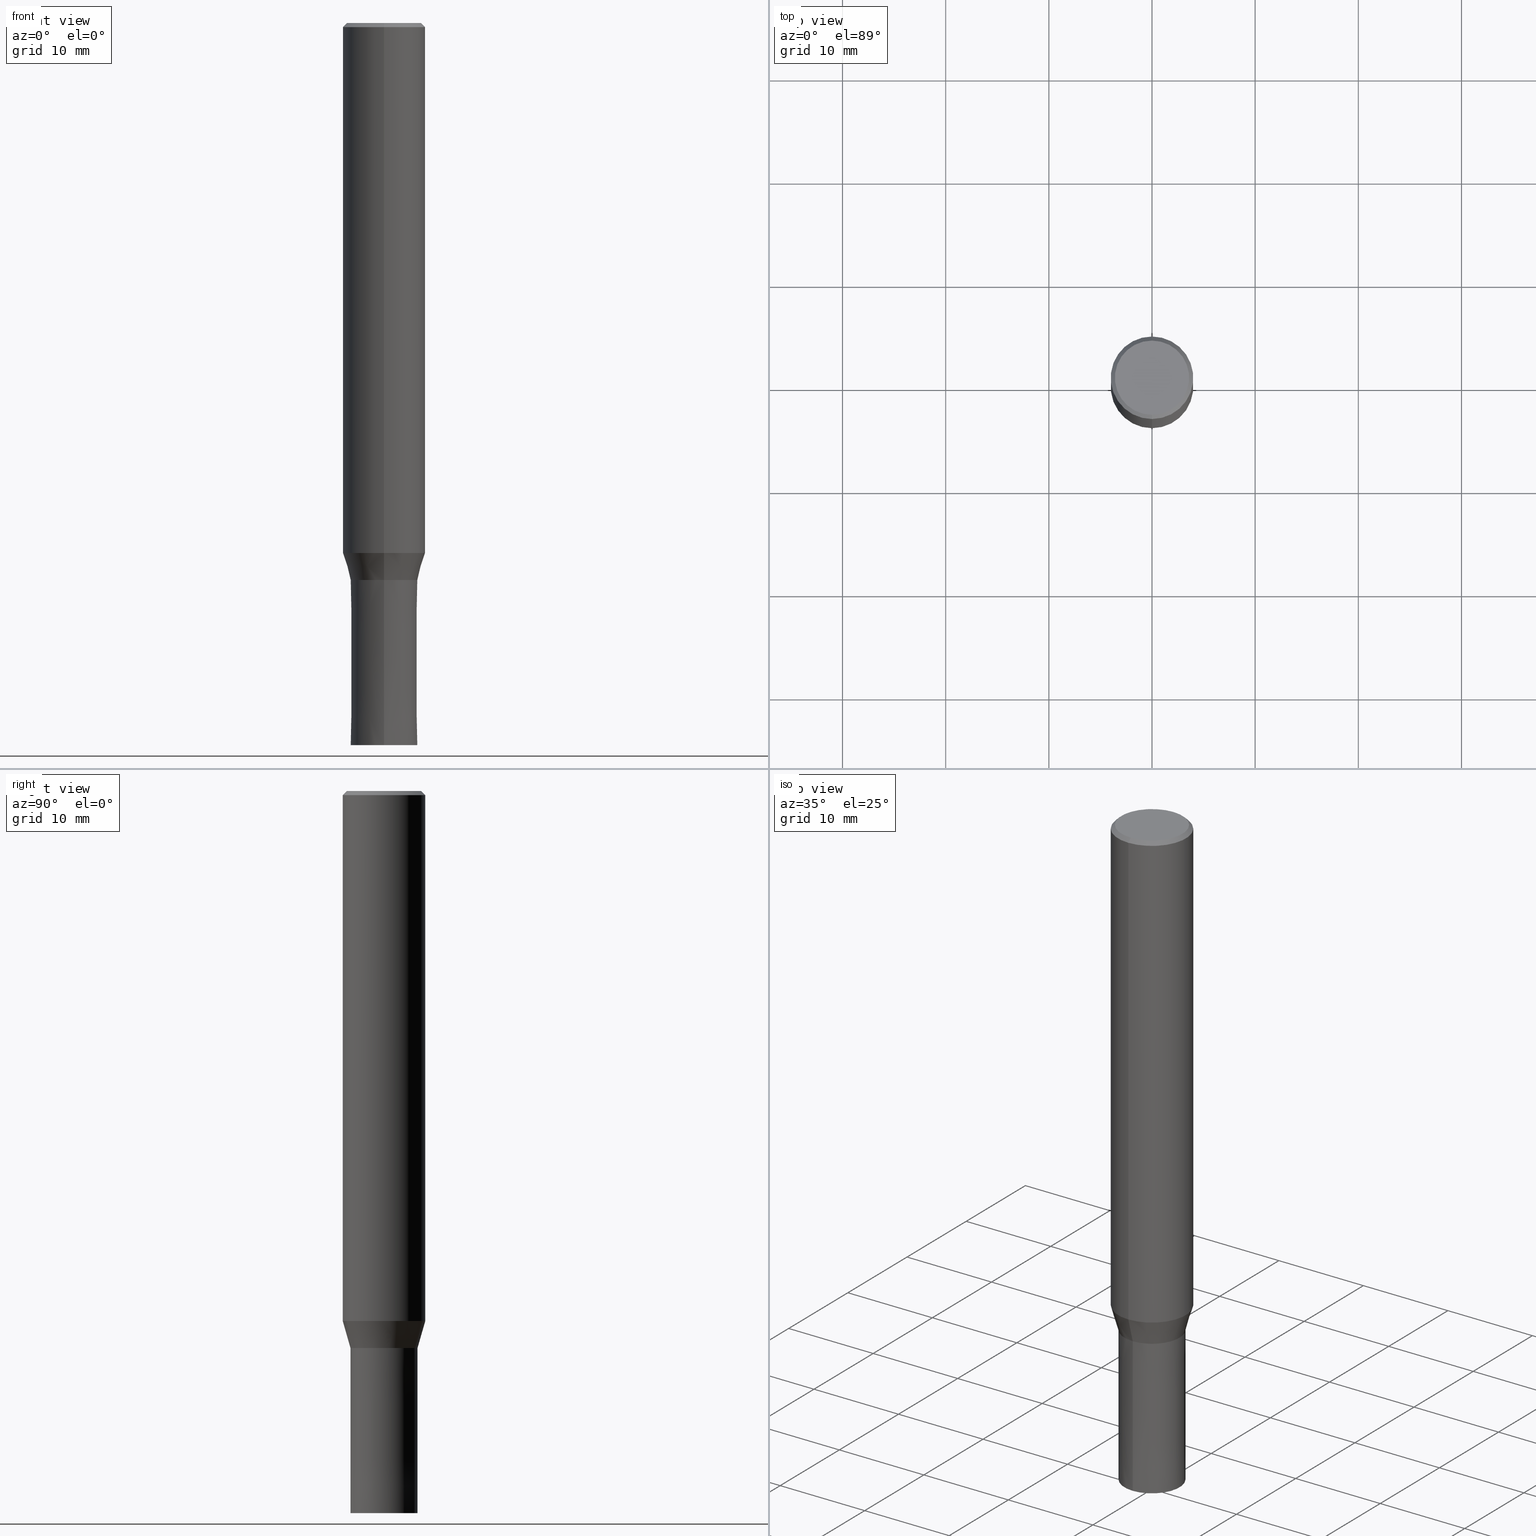
[diagram: canonical four-view strip — front | top / right | iso, engineering-drawing reading convention]
A machine part, canonical four-view strip (front | top / right | iso — engineering-drawing reading convention). The complete STEP part file that produces these views, byte-faithful:
ISO-10303-21;
HEADER;
FILE_DESCRIPTION(('no description'),'unknown implementation level');
FILE_NAME('CZS4065-1600-Huellk.stp','  ',('CIMSOURCE GmbH'),('CADClick - KiM GmbH - www.kimweb.de'),'unknown preprocess','ACIS','unknown authorization');
FILE_SCHEMA(('automotive_design'));
ENDSEC;
DATA;
#1=MECHANICAL_DESIGN_GEOMETRIC_PRESENTATION_REPRESENTATION(' ',(#14,#15,#16,#17,#18,#19,#20,#21,#22,#23,#24,#25,#26,#27,#28,#29,#30,#31,#32,#33,#34,#35,#36,#37,#38,#39,#40,#41,#42,#43,#44,#45,#46,#47,#48,#49,#50,#51,#52,#53,#54,#55,#56,#57,#58,#59,#60,#61,#62,#63,#64),#10);
#2=PRODUCT_DEFINITION_CONTEXT('',#65,'design');
#3=APPLICATION_PROTOCOL_DEFINITION('INTERNATIONAL STANDARD','automotive_design',1994,#65);
#4=PRODUCT_CATEGORY_RELATIONSHIP('NONE','NONE',#66,#67);
#5=SHAPE_DEFINITION_REPRESENTATION(#68,#69);
#6=PRODUCT_DEFINITION_CONTEXT('',#70,'design');
#7=APPLICATION_PROTOCOL_DEFINITION('INTERNATIONAL STANDARD','automotive_design',1994,#70);
#8=PRODUCT_CATEGORY_RELATIONSHIP('NONE','NONE',#71,#72);
#9=SHAPE_DEFINITION_REPRESENTATION(#73,#74);
#10= (GEOMETRIC_REPRESENTATION_CONTEXT(3)GLOBAL_UNCERTAINTY_ASSIGNED_CONTEXT((#77))GLOBAL_UNIT_ASSIGNED_CONTEXT((#79,#80,#81))REPRESENTATION_CONTEXT('NONE','WORKSPACE'));
#14=STYLED_ITEM('',(#83),#84);
#15=STYLED_ITEM('',(#85),#86);
#16=STYLED_ITEM('',(#87),#88);
#17=STYLED_ITEM('',(#89),#90);
#18=STYLED_ITEM('',(#91),#92);
#19=STYLED_ITEM('',(#93),#94);
#20=STYLED_ITEM('',(#95),#96);
#21=STYLED_ITEM('',(#97),#98);
#22=STYLED_ITEM('',(#99),#100);
#23=STYLED_ITEM('',(#101),#102);
#24=STYLED_ITEM('',(#103),#104);
#25=STYLED_ITEM('',(#105),#106);
#26=STYLED_ITEM('',(#107),#108);
#27=STYLED_ITEM('',(#109),#110);
#28=STYLED_ITEM('',(#111),#112);
#29=STYLED_ITEM('',(#113),#114);
#30=STYLED_ITEM('',(#115),#116);
#31=STYLED_ITEM('',(#117),#118);
#32=STYLED_ITEM('',(#119),#120);
#33=STYLED_ITEM('',(#121),#122);
#34=STYLED_ITEM('',(#123),#124);
#35=STYLED_ITEM('',(#125),#126);
#36=STYLED_ITEM('',(#127),#128);
#37=STYLED_ITEM('',(#129),#130);
#38=STYLED_ITEM('',(#131),#132);
#39=STYLED_ITEM('',(#133),#134);
#40=STYLED_ITEM('',(#135),#136);
#41=STYLED_ITEM('',(#137),#138);
#42=STYLED_ITEM('',(#139),#140);
#43=STYLED_ITEM('',(#141),#142);
#44=STYLED_ITEM('',(#143),#144);
#45=STYLED_ITEM('',(#145),#146);
#46=STYLED_ITEM('',(#147),#148);
#47=STYLED_ITEM('',(#149),#150);
#48=STYLED_ITEM('',(#151),#152);
#49=STYLED_ITEM('',(#153),#154);
#50=STYLED_ITEM('',(#155),#156);
#51=STYLED_ITEM('',(#157),#158);
#52=STYLED_ITEM('',(#159),#160);
#53=STYLED_ITEM('',(#161),#162);
#54=STYLED_ITEM('',(#163),#164);
#55=STYLED_ITEM('',(#165),#166);
#56=STYLED_ITEM('',(#167),#168);
#57=STYLED_ITEM('',(#169),#170);
#58=STYLED_ITEM('',(#171),#172);
#59=STYLED_ITEM('',(#173),#174);
#60=STYLED_ITEM('',(#175),#176);
#61=STYLED_ITEM('',(#177),#178);
#62=STYLED_ITEM('',(#179),#180);
#63=STYLED_ITEM('',(#181),#182);
#64=STYLED_ITEM('',(#183),#184);
#65=APPLICATION_CONTEXT(' ');
#66=PRODUCT_CATEGORY('part','NONE');
#67=PRODUCT_RELATED_PRODUCT_CATEGORY('detail',' ',(#185));
#68=PRODUCT_DEFINITION_SHAPE('NONE','NONE',#186);
#69=ADVANCED_BREP_SHAPE_REPRESENTATION('1',(#182,#187),#10);
#70=APPLICATION_CONTEXT(' ');
#71=PRODUCT_CATEGORY('part','NONE');
#72=PRODUCT_RELATED_PRODUCT_CATEGORY('detail',' ',(#188));
#73=PRODUCT_DEFINITION_SHAPE('NONE','NONE',#189);
#74=ADVANCED_BREP_SHAPE_REPRESENTATION('2',(#168,#190),#10);
#77=UNCERTAINTY_MEASURE_WITH_UNIT(LENGTH_MEASURE(1.0E-006),#79,'','');
#79= (CONVERSION_BASED_UNIT('MILLIMETRE',#193)LENGTH_UNIT()NAMED_UNIT(#196));
#80= (NAMED_UNIT(#198)PLANE_ANGLE_UNIT()SI_UNIT($,.RADIAN.));
#81= (NAMED_UNIT(#198)SOLID_ANGLE_UNIT()SI_UNIT($,.STERADIAN.));
#83=PRESENTATION_STYLE_ASSIGNMENT((#204));
#84=EDGE_CURVE('',#114,#136,#205,.T.);
#85=PRESENTATION_STYLE_ASSIGNMENT((#206));
#86=EDGE_CURVE('',#128,#122,#207,.T.);
#87=PRESENTATION_STYLE_ASSIGNMENT((#208));
#88=VERTEX_POINT('',#209);
#89=PRESENTATION_STYLE_ASSIGNMENT((#210));
#90=VERTEX_POINT('',#211);
#91=PRESENTATION_STYLE_ASSIGNMENT((#212));
#92=EDGE_CURVE('',#90,#134,#213,.T.);
#93=PRESENTATION_STYLE_ASSIGNMENT((#214));
#94=VERTEX_POINT('',#215);
#95=PRESENTATION_STYLE_ASSIGNMENT((#216));
#96=EDGE_CURVE('',#94,#112,#217,.T.);
#97=PRESENTATION_STYLE_ASSIGNMENT((#218));
#98=ADVANCED_FACE('',(#219),#220,.T.);
#99=PRESENTATION_STYLE_ASSIGNMENT((#221));
#100=ADVANCED_FACE('',(#222),#223,.T.);
#101=PRESENTATION_STYLE_ASSIGNMENT((#224));
#102=ADVANCED_FACE('',(#225,#226),#227,.T.);
#103=PRESENTATION_STYLE_ASSIGNMENT((#228));
#104=EDGE_CURVE('',#128,#88,#229,.T.);
#105=PRESENTATION_STYLE_ASSIGNMENT((#230));
#106=VERTEX_POINT('',#231);
#107=PRESENTATION_STYLE_ASSIGNMENT((#232));
#108=EDGE_CURVE('',#112,#174,#233,.T.);
#109=PRESENTATION_STYLE_ASSIGNMENT((#234));
#110=EDGE_CURVE('',#136,#160,#235,.T.);
#111=PRESENTATION_STYLE_ASSIGNMENT((#236));
#112=VERTEX_POINT('',#237);
#113=PRESENTATION_STYLE_ASSIGNMENT((#238));
#114=VERTEX_POINT('',#239);
#115=PRESENTATION_STYLE_ASSIGNMENT((#240));
#116=EDGE_CURVE('',#90,#94,#241,.T.);
#117=PRESENTATION_STYLE_ASSIGNMENT((#242));
#118=ADVANCED_FACE('',(#243),#244,.T.);
#119=PRESENTATION_STYLE_ASSIGNMENT((#245));
#120=EDGE_CURVE('',#114,#138,#246,.T.);
#121=PRESENTATION_STYLE_ASSIGNMENT((#247));
#122=VERTEX_POINT('',#248);
#123=PRESENTATION_STYLE_ASSIGNMENT((#249));
#124=ADVANCED_FACE('',(#250),#251,.T.);
#125=PRESENTATION_STYLE_ASSIGNMENT((#252));
#126=ADVANCED_FACE('',(#253),#254,.T.);
#127=PRESENTATION_STYLE_ASSIGNMENT((#255));
#128=VERTEX_POINT('',#256);
#129=PRESENTATION_STYLE_ASSIGNMENT((#257));
#130=VERTEX_POINT('',#258);
#131=PRESENTATION_STYLE_ASSIGNMENT((#259));
#132=EDGE_CURVE('',#106,#94,#260,.T.);
#133=PRESENTATION_STYLE_ASSIGNMENT((#261));
#134=VERTEX_POINT('',#262);
#135=PRESENTATION_STYLE_ASSIGNMENT((#263));
#136=VERTEX_POINT('',#264);
#137=PRESENTATION_STYLE_ASSIGNMENT((#265));
#138=VERTEX_POINT('',#266);
#139=PRESENTATION_STYLE_ASSIGNMENT((#267));
#140=ADVANCED_FACE('',(#268),#269,.T.);
#141=PRESENTATION_STYLE_ASSIGNMENT((#270));
#142=ADVANCED_FACE('',(#271),#272,.T.);
#143=PRESENTATION_STYLE_ASSIGNMENT((#273));
#144=EDGE_CURVE('',#160,#138,#274,.T.);
#145=PRESENTATION_STYLE_ASSIGNMENT((#275));
#146=EDGE_CURVE('',#122,#128,#276,.T.);
#147=PRESENTATION_STYLE_ASSIGNMENT((#277));
#148=ADVANCED_FACE('',(#278),#279,.T.);
#149=PRESENTATION_STYLE_ASSIGNMENT((#280));
#150=EDGE_CURVE('',#160,#136,#281,.T.);
#151=PRESENTATION_STYLE_ASSIGNMENT((#282));
#152=ADVANCED_FACE('',(#283),#284,.T.);
#153=PRESENTATION_STYLE_ASSIGNMENT((#285));
#154=EDGE_CURVE('',#174,#90,#286,.T.);
#155=PRESENTATION_STYLE_ASSIGNMENT((#287));
#156=EDGE_CURVE('',#130,#88,#288,.T.);
#157=PRESENTATION_STYLE_ASSIGNMENT((#289));
#158=ADVANCED_FACE('',(#290),#291,.T.);
#159=PRESENTATION_STYLE_ASSIGNMENT((#292));
#160=VERTEX_POINT('',#293);
#161=PRESENTATION_STYLE_ASSIGNMENT((#294));
#162=ADVANCED_FACE('',(#295),#296,.T.);
#163=PRESENTATION_STYLE_ASSIGNMENT((#297));
#164=EDGE_CURVE('',#174,#112,#298,.T.);
#165=PRESENTATION_STYLE_ASSIGNMENT((#299));
#166=EDGE_CURVE('',#130,#122,#300,.T.);
#167=PRESENTATION_STYLE_ASSIGNMENT((#301));
#168=MANIFOLD_SOLID_BREP('2',#302);
#169=PRESENTATION_STYLE_ASSIGNMENT((#303));
#170=EDGE_CURVE('',#138,#114,#304,.T.);
#171=PRESENTATION_STYLE_ASSIGNMENT((#305));
#172=EDGE_CURVE('',#88,#130,#306,.T.);
#173=PRESENTATION_STYLE_ASSIGNMENT((#307));
#174=VERTEX_POINT('',#308);
#175=PRESENTATION_STYLE_ASSIGNMENT((#309));
#176=EDGE_CURVE('',#94,#90,#310,.T.);
#177=PRESENTATION_STYLE_ASSIGNMENT((#311));
#178=EDGE_CURVE('',#134,#106,#312,.T.);
#179=PRESENTATION_STYLE_ASSIGNMENT((#313));
#180=ADVANCED_FACE('',(#314),#315,.T.);
#181=PRESENTATION_STYLE_ASSIGNMENT((#316));
#182=MANIFOLD_SOLID_BREP('1',#317);
#183=PRESENTATION_STYLE_ASSIGNMENT((#318));
#184=EDGE_CURVE('',#106,#134,#319,.T.);
#185=PRODUCT('1','1','PART-1-DESC',(#320));
#186=PRODUCT_DEFINITION('NONE','NONE',#321,#2);
#187=AXIS2_PLACEMENT_3D('',#322,#323,#324);
#188=PRODUCT('2','2','PART-2-DESC',(#325));
#189=PRODUCT_DEFINITION('NONE','NONE',#326,#6);
#190=AXIS2_PLACEMENT_3D('',#327,#328,#329);
#193=LENGTH_MEASURE_WITH_UNIT(LENGTH_MEASURE(1.0),#330);
#196=DIMENSIONAL_EXPONENTS(1.0,0.0,0.0,0.0,0.0,0.0,0.0);
#198=DIMENSIONAL_EXPONENTS(0.0,0.0,0.0,0.0,0.0,0.0,0.0);
#204=CURVE_STYLE('',#331,POSITIVE_LENGTH_MEASURE(1.0E-006),#332);
#205=LINE('',#333,#334);
#206=CURVE_STYLE('',#335,POSITIVE_LENGTH_MEASURE(1.0E-006),#336);
#207=CIRCLE('',#337,3.99995);
#208=POINT_STYLE(' ',#338,POSITIVE_LENGTH_MEASURE(1.0E-006),#339);
#209=CARTESIAN_POINT('',(0.0,3.24995,-54.0));
#210=POINT_STYLE(' ',#340,POSITIVE_LENGTH_MEASURE(1.0E-006),#341);
#211=CARTESIAN_POINT('',(0.0,4.0,-0.399999999999999));
#212=CURVE_STYLE('',#342,POSITIVE_LENGTH_MEASURE(1.0E-006),#343);
#213=LINE('',#344,#345);
#214=POINT_STYLE(' ',#346,POSITIVE_LENGTH_MEASURE(1.0E-006),#347);
#215=CARTESIAN_POINT('',(4.89842541528951E-016,-4.0,-0.399999999999999));
#216=CURVE_STYLE('',#348,POSITIVE_LENGTH_MEASURE(1.0E-006),#349);
#217=LINE('',#350,#351);
#218=SURFACE_STYLE_USAGE(.BOTH.,#352);
#219=FACE_OUTER_BOUND('',#353,.T.);
#220=CYLINDRICAL_SURFACE('',#354,4.0);
#221=SURFACE_STYLE_USAGE(.BOTH.,#355);
#222=FACE_OUTER_BOUND('',#356,.T.);
#223=PLANE('',#357);
#224=SURFACE_STYLE_USAGE(.BOTH.,#358);
#225=FACE_OUTER_BOUND('',#359,.T.);
#226=FACE_BOUND('',#360,.T.);
#227=PLANE('',#361);
#228=CURVE_STYLE('',#362,POSITIVE_LENGTH_MEASURE(1.0E-006),#363);
#229=LINE('',#364,#365);
#230=POINT_STYLE(' ',#366,POSITIVE_LENGTH_MEASURE(1.0E-006),#367);
#231=CARTESIAN_POINT('',(4.89842541528951E-016,-4.0,-51.384));
#232=CURVE_STYLE('',#368,POSITIVE_LENGTH_MEASURE(1.0E-006),#369);
#233=CIRCLE('',#370,3.6);
#234=CURVE_STYLE('',#371,POSITIVE_LENGTH_MEASURE(1.0E-006),#372);
#235=CIRCLE('',#373,3.25);
#236=POINT_STYLE(' ',#374,POSITIVE_LENGTH_MEASURE(1.0E-006),#375);
#237=CARTESIAN_POINT('',(4.40858287376056E-016,-3.6,0.0));
#238=POINT_STYLE(' ',#376,POSITIVE_LENGTH_MEASURE(1.0E-006),#377);
#239=CARTESIAN_POINT('',(0.0,3.2499,-54.0));
#240=CURVE_STYLE('',#378,POSITIVE_LENGTH_MEASURE(1.0E-006),#379);
#241=CIRCLE('',#380,4.0);
#242=SURFACE_STYLE_USAGE(.BOTH.,#381);
#243=FACE_OUTER_BOUND('',#382,.T.);
#244=PLANE('',#383);
#245=CURVE_STYLE('',#384,POSITIVE_LENGTH_MEASURE(1.0E-006),#385);
#246=CIRCLE('',#386,3.2499);
#247=POINT_STYLE(' ',#387,POSITIVE_LENGTH_MEASURE(1.0E-006),#388);
#248=CARTESIAN_POINT('',(4.89836418497182E-016,-3.99995,-51.384));
#249=SURFACE_STYLE_USAGE(.BOTH.,#389);
#250=FACE_OUTER_BOUND('',#390,.T.);
#251=CONICAL_SURFACE('',#391,3.8,0.78539816339745);
#252=SURFACE_STYLE_USAGE(.BOTH.,#392);
#253=FACE_OUTER_BOUND('',#393,.T.);
#254=CYLINDRICAL_SURFACE('',#394,4.0);
#255=POINT_STYLE(' ',#395,POSITIVE_LENGTH_MEASURE(1.0E-006),#396);
#256=CARTESIAN_POINT('',(0.0,3.99995,-51.384));
#257=POINT_STYLE(' ',#397,POSITIVE_LENGTH_MEASURE(1.0E-006),#398);
#258=CARTESIAN_POINT('',(3.97990941960504E-016,-3.24995,-54.0));
#259=CURVE_STYLE('',#399,POSITIVE_LENGTH_MEASURE(1.0E-006),#400);
#260=LINE('',#401,#402);
#261=POINT_STYLE(' ',#403,POSITIVE_LENGTH_MEASURE(1.0E-006),#404);
#262=CARTESIAN_POINT('',(0.0,4.0,-51.384));
#263=POINT_STYLE(' ',#405,POSITIVE_LENGTH_MEASURE(1.0E-006),#406);
#264=CARTESIAN_POINT('',(0.0,3.25,-70.0));
#265=POINT_STYLE(' ',#407,POSITIVE_LENGTH_MEASURE(1.0E-006),#408);
#266=CARTESIAN_POINT('',(3.97984818928734E-016,-3.2499,-54.0));
#267=SURFACE_STYLE_USAGE(.BOTH.,#409);
#268=FACE_OUTER_BOUND('',#410,.T.);
#269=PLANE('',#411);
#270=SURFACE_STYLE_USAGE(.BOTH.,#412);
#271=FACE_OUTER_BOUND('',#413,.T.);
#272=CONICAL_SURFACE('',#414,3.24995,6.24999999993181E-006);
#273=CURVE_STYLE('',#415,POSITIVE_LENGTH_MEASURE(1.0E-006),#416);
#274=LINE('',#417,#418);
#275=CURVE_STYLE('',#419,POSITIVE_LENGTH_MEASURE(1.0E-006),#420);
#276=CIRCLE('',#421,3.99995);
#277=SURFACE_STYLE_USAGE(.BOTH.,#422);
#278=FACE_OUTER_BOUND('',#423,.T.);
#279=CONICAL_SURFACE('',#424,3.62495,0.279208199033747);
#280=CURVE_STYLE('',#425,POSITIVE_LENGTH_MEASURE(1.0E-006),#426);
#281=CIRCLE('',#427,3.25);
#282=SURFACE_STYLE_USAGE(.BOTH.,#428);
#283=FACE_OUTER_BOUND('',#429,.T.);
#284=PLANE('',#430);
#285=CURVE_STYLE('',#431,POSITIVE_LENGTH_MEASURE(1.0E-006),#432);
#286=LINE('',#433,#434);
#287=CURVE_STYLE('',#435,POSITIVE_LENGTH_MEASURE(1.0E-006),#436);
#288=CIRCLE('',#437,3.24995);
#289=SURFACE_STYLE_USAGE(.BOTH.,#438);
#290=FACE_OUTER_BOUND('',#439,.T.);
#291=CONICAL_SURFACE('',#440,3.24995,6.24999999993181E-006);
#292=POINT_STYLE(' ',#441,POSITIVE_LENGTH_MEASURE(1.0E-006),#442);
#293=CARTESIAN_POINT('',(3.97997064992273E-016,-3.25,-70.0));
#294=SURFACE_STYLE_USAGE(.BOTH.,#443);
#295=FACE_OUTER_BOUND('',#444,.T.);
#296=CONICAL_SURFACE('',#445,3.8,0.78539816339745);
#297=CURVE_STYLE('',#446,POSITIVE_LENGTH_MEASURE(1.0E-006),#447);
#298=CIRCLE('',#448,3.6);
#299=CURVE_STYLE('',#449,POSITIVE_LENGTH_MEASURE(1.0E-006),#450);
#300=LINE('',#451,#452);
#301=SURFACE_STYLE_USAGE(.BOTH.,#453);
#302=CLOSED_SHELL('',(#158,#118,#142,#100));
#303=CURVE_STYLE('',#454,POSITIVE_LENGTH_MEASURE(1.0E-006),#455);
#304=CIRCLE('',#456,3.2499);
#305=CURVE_STYLE('',#457,POSITIVE_LENGTH_MEASURE(1.0E-006),#458);
#306=CIRCLE('',#459,3.24995);
#307=POINT_STYLE(' ',#460,POSITIVE_LENGTH_MEASURE(1.0E-006),#461);
#308=CARTESIAN_POINT('',(0.0,3.6,0.0));
#309=CURVE_STYLE('',#462,POSITIVE_LENGTH_MEASURE(1.0E-006),#463);
#310=CIRCLE('',#464,4.0);
#311=CURVE_STYLE('',#465,POSITIVE_LENGTH_MEASURE(1.0E-006),#466);
#312=CIRCLE('',#467,4.0);
#313=SURFACE_STYLE_USAGE(.BOTH.,#468);
#314=FACE_OUTER_BOUND('',#469,.T.);
#315=CONICAL_SURFACE('',#470,3.62495,0.279208199033747);
#316=SURFACE_STYLE_USAGE(.BOTH.,#471);
#317=CLOSED_SHELL('',(#180,#126,#162,#102,#140,#124,#98,#148,#152));
#318=CURVE_STYLE('',#472,POSITIVE_LENGTH_MEASURE(1.0E-006),#473);
#319=CIRCLE('',#474,4.0);
#320=PRODUCT_CONTEXT('',#65,'mechanical');
#321=PRODUCT_DEFINITION_FORMATION_WITH_SPECIFIED_SOURCE(' ','NONE',#185,.NOT_KNOWN.);
#322=CARTESIAN_POINT('',(0.0,0.0,0.0));
#323=DIRECTION('',(0.0,0.0,1.0));
#324=DIRECTION('',(1.0,0.0,0.0));
#325=PRODUCT_CONTEXT('',#70,'mechanical');
#326=PRODUCT_DEFINITION_FORMATION_WITH_SPECIFIED_SOURCE(' ','NONE',#188,.NOT_KNOWN.);
#327=CARTESIAN_POINT('',(0.0,0.0,0.0));
#328=DIRECTION('',(0.0,0.0,1.0));
#329=DIRECTION('',(1.0,0.0,0.0));
#330= (NAMED_UNIT(#196)LENGTH_UNIT()SI_UNIT(.MILLI.,.METRE.));
#331=DRAUGHTING_PRE_DEFINED_CURVE_FONT('continuous');
#332=COLOUR_RGB('',0.800000011920929,0.800000011920929,0.800000011920929);
#333=CARTESIAN_POINT('',(-3.97990941960504E-016,3.24995,-62.0));
#334=VECTOR('',#476,1.0);
#335=DRAUGHTING_PRE_DEFINED_CURVE_FONT('continuous');
#336=COLOUR_RGB('',0.498039215803146,0.498039215803146,0.498039215803146);
#337=AXIS2_PLACEMENT_3D('',#477,#478,#479);
#338=PRE_DEFINED_MARKER('');
#339=COLOUR_RGB('',0.498039215803146,0.498039215803146,0.498039215803146);
#340=PRE_DEFINED_MARKER('');
#341=COLOUR_RGB('',0.498039215803146,0.498039215803146,0.498039215803146);
#342=DRAUGHTING_PRE_DEFINED_CURVE_FONT('continuous');
#343=COLOUR_RGB('',0.498039215803146,0.498039215803146,0.498039215803146);
#344=CARTESIAN_POINT('',(-4.89842541528951E-016,4.0,-25.892));
#345=VECTOR('',#480,1.0);
#346=PRE_DEFINED_MARKER('');
#347=COLOUR_RGB('',0.498039215803146,0.498039215803146,0.498039215803146);
#348=DRAUGHTING_PRE_DEFINED_CURVE_FONT('continuous');
#349=COLOUR_RGB('',0.498039215803146,0.498039215803146,0.498039215803146);
#350=CARTESIAN_POINT('',(4.65350414452503E-016,-3.8,-0.199999999999996));
#351=VECTOR('',#481,1.0);
#352=SURFACE_SIDE_STYLE('',(#482));
#353=EDGE_LOOP('',(#483,#484,#485,#486));
#354=AXIS2_PLACEMENT_3D('',#487,#488,#489);
#355=SURFACE_SIDE_STYLE('',(#490));
#356=EDGE_LOOP('',(#491,#492));
#357=AXIS2_PLACEMENT_3D('',#493,#494,#495);
#358=SURFACE_SIDE_STYLE('',(#496));
#359=EDGE_LOOP('',(#497,#498));
#360=EDGE_LOOP('',(#499,#500));
#361=AXIS2_PLACEMENT_3D('',#501,#502,#503);
#362=DRAUGHTING_PRE_DEFINED_CURVE_FONT('continuous');
#363=COLOUR_RGB('',0.498039215803146,0.498039215803146,0.498039215803146);
#364=CARTESIAN_POINT('',(-4.43913680228843E-016,3.62495,-52.692));
#365=VECTOR('',#504,1.0);
#366=PRE_DEFINED_MARKER('');
#367=COLOUR_RGB('',0.498039215803146,0.498039215803146,0.498039215803146);
#368=DRAUGHTING_PRE_DEFINED_CURVE_FONT('continuous');
#369=COLOUR_RGB('',0.498039215803146,0.498039215803146,0.498039215803146);
#370=AXIS2_PLACEMENT_3D('',#505,#506,#507);
#371=DRAUGHTING_PRE_DEFINED_CURVE_FONT('continuous');
#372=COLOUR_RGB('',0.800000011920929,0.800000011920929,0.800000011920929);
#373=AXIS2_PLACEMENT_3D('',#508,#509,#510);
#374=PRE_DEFINED_MARKER('');
#375=COLOUR_RGB('',0.498039215803146,0.498039215803146,0.498039215803146);
#376=PRE_DEFINED_MARKER('');
#377=COLOUR_RGB('',0.800000011920929,0.800000011920929,0.800000011920929);
#378=DRAUGHTING_PRE_DEFINED_CURVE_FONT('continuous');
#379=COLOUR_RGB('',0.498039215803146,0.498039215803146,0.498039215803146);
#380=AXIS2_PLACEMENT_3D('',#511,#512,#513);
#381=SURFACE_SIDE_STYLE('',(#514));
#382=EDGE_LOOP('',(#515,#516));
#383=AXIS2_PLACEMENT_3D('',#517,#518,#519);
#384=DRAUGHTING_PRE_DEFINED_CURVE_FONT('continuous');
#385=COLOUR_RGB('',0.800000011920929,0.800000011920929,0.800000011920929);
#386=AXIS2_PLACEMENT_3D('',#520,#521,#522);
#387=PRE_DEFINED_MARKER('');
#388=COLOUR_RGB('',0.498039215803146,0.498039215803146,0.498039215803146);
#389=SURFACE_SIDE_STYLE('',(#523));
#390=EDGE_LOOP('',(#524,#525,#526,#527));
#391=AXIS2_PLACEMENT_3D('',#528,#529,#530);
#392=SURFACE_SIDE_STYLE('',(#531));
#393=EDGE_LOOP('',(#532,#533,#534,#535));
#394=AXIS2_PLACEMENT_3D('',#536,#537,#538);
#395=PRE_DEFINED_MARKER('');
#396=COLOUR_RGB('',0.498039215803146,0.498039215803146,0.498039215803146);
#397=PRE_DEFINED_MARKER('');
#398=COLOUR_RGB('',0.498039215803146,0.498039215803146,0.498039215803146);
#399=DRAUGHTING_PRE_DEFINED_CURVE_FONT('continuous');
#400=COLOUR_RGB('',0.498039215803146,0.498039215803146,0.498039215803146);
#401=CARTESIAN_POINT('',(4.89842541528951E-016,-4.0,-25.892));
#402=VECTOR('',#539,1.0);
#403=PRE_DEFINED_MARKER('');
#404=COLOUR_RGB('',0.498039215803146,0.498039215803146,0.498039215803146);
#405=PRE_DEFINED_MARKER('');
#406=COLOUR_RGB('',0.800000011920929,0.800000011920929,0.800000011920929);
#407=PRE_DEFINED_MARKER('');
#408=COLOUR_RGB('',0.800000011920929,0.800000011920929,0.800000011920929);
#409=SURFACE_SIDE_STYLE('',(#540));
#410=EDGE_LOOP('',(#541,#542));
#411=AXIS2_PLACEMENT_3D('',#543,#544,#545);
#412=SURFACE_SIDE_STYLE('',(#546));
#413=EDGE_LOOP('',(#547,#548,#549,#550));
#414=AXIS2_PLACEMENT_3D('',#551,#552,#553);
#415=DRAUGHTING_PRE_DEFINED_CURVE_FONT('continuous');
#416=COLOUR_RGB('',0.800000011920929,0.800000011920929,0.800000011920929);
#417=CARTESIAN_POINT('',(3.97990941960504E-016,-3.24995,-62.0));
#418=VECTOR('',#554,1.0);
#419=DRAUGHTING_PRE_DEFINED_CURVE_FONT('continuous');
#420=COLOUR_RGB('',0.498039215803146,0.498039215803146,0.498039215803146);
#421=AXIS2_PLACEMENT_3D('',#555,#556,#557);
#422=SURFACE_SIDE_STYLE('',(#558));
#423=EDGE_LOOP('',(#559,#560,#561,#562));
#424=AXIS2_PLACEMENT_3D('',#563,#564,#565);
#425=DRAUGHTING_PRE_DEFINED_CURVE_FONT('continuous');
#426=COLOUR_RGB('',0.800000011920929,0.800000011920929,0.800000011920929);
#427=AXIS2_PLACEMENT_3D('',#566,#567,#568);
#428=SURFACE_SIDE_STYLE('',(#569));
#429=EDGE_LOOP('',(#570,#571));
#430=AXIS2_PLACEMENT_3D('',#572,#573,#574);
#431=DRAUGHTING_PRE_DEFINED_CURVE_FONT('continuous');
#432=COLOUR_RGB('',0.498039215803146,0.498039215803146,0.498039215803146);
#433=CARTESIAN_POINT('',(-4.65350414452503E-016,3.8,-0.199999999999996));
#434=VECTOR('',#575,1.0);
#435=DRAUGHTING_PRE_DEFINED_CURVE_FONT('continuous');
#436=COLOUR_RGB('',0.498039215803146,0.498039215803146,0.498039215803146);
#437=AXIS2_PLACEMENT_3D('',#576,#577,#578);
#438=SURFACE_SIDE_STYLE('',(#579));
#439=EDGE_LOOP('',(#580,#581,#582,#583));
#440=AXIS2_PLACEMENT_3D('',#584,#585,#586);
#441=PRE_DEFINED_MARKER('');
#442=COLOUR_RGB('',0.800000011920929,0.800000011920929,0.800000011920929);
#443=SURFACE_SIDE_STYLE('',(#587));
#444=EDGE_LOOP('',(#588,#589,#590,#591));
#445=AXIS2_PLACEMENT_3D('',#592,#593,#594);
#446=DRAUGHTING_PRE_DEFINED_CURVE_FONT('continuous');
#447=COLOUR_RGB('',0.498039215803146,0.498039215803146,0.498039215803146);
#448=AXIS2_PLACEMENT_3D('',#595,#596,#597);
#449=DRAUGHTING_PRE_DEFINED_CURVE_FONT('continuous');
#450=COLOUR_RGB('',0.498039215803146,0.498039215803146,0.498039215803146);
#451=CARTESIAN_POINT('',(4.43913680228843E-016,-3.62495,-52.692));
#452=VECTOR('',#598,1.0);
#453=SURFACE_SIDE_STYLE('',(#599));
#454=DRAUGHTING_PRE_DEFINED_CURVE_FONT('continuous');
#455=COLOUR_RGB('',0.800000011920929,0.800000011920929,0.800000011920929);
#456=AXIS2_PLACEMENT_3D('',#600,#601,#602);
#457=DRAUGHTING_PRE_DEFINED_CURVE_FONT('continuous');
#458=COLOUR_RGB('',0.498039215803146,0.498039215803146,0.498039215803146);
#459=AXIS2_PLACEMENT_3D('',#603,#604,#605);
#460=PRE_DEFINED_MARKER('');
#461=COLOUR_RGB('',0.498039215803146,0.498039215803146,0.498039215803146);
#462=DRAUGHTING_PRE_DEFINED_CURVE_FONT('continuous');
#463=COLOUR_RGB('',0.498039215803146,0.498039215803146,0.498039215803146);
#464=AXIS2_PLACEMENT_3D('',#606,#607,#608);
#465=DRAUGHTING_PRE_DEFINED_CURVE_FONT('continuous');
#466=COLOUR_RGB('',0.498039215803146,0.498039215803146,0.498039215803146);
#467=AXIS2_PLACEMENT_3D('',#609,#610,#611);
#468=SURFACE_SIDE_STYLE('',(#612));
#469=EDGE_LOOP('',(#613,#614,#615,#616));
#470=AXIS2_PLACEMENT_3D('',#617,#618,#619);
#471=SURFACE_SIDE_STYLE('',(#620));
#472=DRAUGHTING_PRE_DEFINED_CURVE_FONT('continuous');
#473=COLOUR_RGB('',0.498039215803146,0.498039215803146,0.498039215803146);
#474=AXIS2_PLACEMENT_3D('',#621,#622,#623);
#476=DIRECTION('',(-7.65378971125652E-022,6.24999999989112E-006,-0.999999999980469));
#477=CARTESIAN_POINT('',(0.0,0.0,-51.384));
#478=DIRECTION('',(0.0,0.0,-1.0));
#479=DIRECTION('',(0.0,1.0,0.0));
#480=DIRECTION('',(0.0,0.0,-1.0));
#481=DIRECTION('',(-8.65927457071937E-017,0.707106781186549,0.707106781186546));
#482=SURFACE_STYLE_FILL_AREA(#624);
#483=ORIENTED_EDGE('',*,*,#92,.T.);
#484=ORIENTED_EDGE('',*,*,#184,.F.);
#485=ORIENTED_EDGE('',*,*,#132,.T.);
#486=ORIENTED_EDGE('',*,*,#176,.T.);
#487=CARTESIAN_POINT('',(0.0,0.0,-25.892));
#488=DIRECTION('',(-0.0,-0.0,1.0));
#489=DIRECTION('',(0.0,1.0,0.0));
#490=SURFACE_STYLE_FILL_AREA(#625);
#491=ORIENTED_EDGE('',*,*,#110,.T.);
#492=ORIENTED_EDGE('',*,*,#150,.T.);
#493=CARTESIAN_POINT('',(0.0,1.6225,-70.0));
#494=DIRECTION('',(0.0,0.0,-1.0));
#495=DIRECTION('',(0.0,1.0,0.0));
#496=SURFACE_STYLE_FILL_AREA(#626);
#497=ORIENTED_EDGE('',*,*,#178,.T.);
#498=ORIENTED_EDGE('',*,*,#184,.T.);
#499=ORIENTED_EDGE('',*,*,#86,.F.);
#500=ORIENTED_EDGE('',*,*,#146,.F.);
#501=CARTESIAN_POINT('',(0.0,2.0,-51.384));
#502=DIRECTION('',(0.0,0.0,-1.0));
#503=DIRECTION('',(0.0,1.0,0.0));
#504=DIRECTION('',(3.37494895041124E-017,-0.275594597388538,-0.961273955691222));
#505=CARTESIAN_POINT('',(0.0,0.0,0.0));
#506=DIRECTION('',(0.0,0.0,-1.0));
#507=DIRECTION('',(0.0,1.0,0.0));
#508=CARTESIAN_POINT('',(0.0,0.0,-70.0));
#509=DIRECTION('',(0.0,0.0,-1.0));
#510=DIRECTION('',(0.0,1.0,0.0));
#511=CARTESIAN_POINT('',(0.0,0.0,-0.399999999999999));
#512=DIRECTION('',(0.0,0.0,-1.0));
#513=DIRECTION('',(0.0,1.0,0.0));
#514=SURFACE_STYLE_FILL_AREA(#627);
#515=ORIENTED_EDGE('',*,*,#120,.F.);
#516=ORIENTED_EDGE('',*,*,#170,.F.);
#517=CARTESIAN_POINT('',(0.0,1.62495,-54.0));
#518=DIRECTION('',(-0.0,0.0,1.0));
#519=DIRECTION('',(0.0,-1.0,0.0));
#520=CARTESIAN_POINT('',(0.0,0.0,-54.0));
#521=DIRECTION('',(0.0,0.0,-1.0));
#522=DIRECTION('',(0.0,1.0,0.0));
#523=SURFACE_STYLE_FILL_AREA(#628);
#524=ORIENTED_EDGE('',*,*,#154,.T.);
#525=ORIENTED_EDGE('',*,*,#176,.F.);
#526=ORIENTED_EDGE('',*,*,#96,.T.);
#527=ORIENTED_EDGE('',*,*,#108,.T.);
#528=CARTESIAN_POINT('',(0.0,0.0,-0.199999999999996));
#529=DIRECTION('',(0.0,-0.0,-1.0));
#530=DIRECTION('',(0.0,1.0,0.0));
#531=SURFACE_STYLE_FILL_AREA(#629);
#532=ORIENTED_EDGE('',*,*,#92,.F.);
#533=ORIENTED_EDGE('',*,*,#116,.T.);
#534=ORIENTED_EDGE('',*,*,#132,.F.);
#535=ORIENTED_EDGE('',*,*,#178,.F.);
#536=CARTESIAN_POINT('',(0.0,0.0,-25.892));
#537=DIRECTION('',(-0.0,-0.0,1.0));
#538=DIRECTION('',(0.0,1.0,0.0));
#539=DIRECTION('',(-0.0,-0.0,1.0));
#540=SURFACE_STYLE_FILL_AREA(#630);
#541=ORIENTED_EDGE('',*,*,#164,.F.);
#542=ORIENTED_EDGE('',*,*,#108,.F.);
#543=CARTESIAN_POINT('',(0.0,1.8,0.0));
#544=DIRECTION('',(-0.0,0.0,1.0));
#545=DIRECTION('',(0.0,-1.0,0.0));
#546=SURFACE_STYLE_FILL_AREA(#631);
#547=ORIENTED_EDGE('',*,*,#84,.T.);
#548=ORIENTED_EDGE('',*,*,#150,.F.);
#549=ORIENTED_EDGE('',*,*,#144,.T.);
#550=ORIENTED_EDGE('',*,*,#170,.T.);
#551=CARTESIAN_POINT('',(0.0,0.0,-62.0));
#552=DIRECTION('',(0.0,-0.0,-1.0));
#553=DIRECTION('',(0.0,1.0,0.0));
#554=DIRECTION('',(-7.65378971125652E-022,6.24999999989112E-006,0.999999999980469));
#555=CARTESIAN_POINT('',(0.0,0.0,-51.384));
#556=DIRECTION('',(0.0,0.0,-1.0));
#557=DIRECTION('',(0.0,1.0,0.0));
#558=SURFACE_STYLE_FILL_AREA(#632);
#559=ORIENTED_EDGE('',*,*,#104,.T.);
#560=ORIENTED_EDGE('',*,*,#156,.F.);
#561=ORIENTED_EDGE('',*,*,#166,.T.);
#562=ORIENTED_EDGE('',*,*,#146,.T.);
#563=CARTESIAN_POINT('',(0.0,0.0,-52.692));
#564=DIRECTION('',(-0.0,-0.0,1.0));
#565=DIRECTION('',(0.0,1.0,0.0));
#566=CARTESIAN_POINT('',(0.0,0.0,-70.0));
#567=DIRECTION('',(0.0,0.0,-1.0));
#568=DIRECTION('',(0.0,1.0,0.0));
#569=SURFACE_STYLE_FILL_AREA(#633);
#570=ORIENTED_EDGE('',*,*,#172,.T.);
#571=ORIENTED_EDGE('',*,*,#156,.T.);
#572=CARTESIAN_POINT('',(0.0,1.624975,-54.0));
#573=DIRECTION('',(0.0,0.0,-1.0));
#574=DIRECTION('',(0.0,1.0,0.0));
#575=DIRECTION('',(-8.65927457071937E-017,0.707106781186549,-0.707106781186546));
#576=CARTESIAN_POINT('',(0.0,0.0,-54.0));
#577=DIRECTION('',(0.0,0.0,-1.0));
#578=DIRECTION('',(0.0,1.0,0.0));
#579=SURFACE_STYLE_FILL_AREA(#634);
#580=ORIENTED_EDGE('',*,*,#84,.F.);
#581=ORIENTED_EDGE('',*,*,#120,.T.);
#582=ORIENTED_EDGE('',*,*,#144,.F.);
#583=ORIENTED_EDGE('',*,*,#110,.F.);
#584=CARTESIAN_POINT('',(0.0,0.0,-62.0));
#585=DIRECTION('',(0.0,-0.0,-1.0));
#586=DIRECTION('',(0.0,1.0,0.0));
#587=SURFACE_STYLE_FILL_AREA(#635);
#588=ORIENTED_EDGE('',*,*,#154,.F.);
#589=ORIENTED_EDGE('',*,*,#164,.T.);
#590=ORIENTED_EDGE('',*,*,#96,.F.);
#591=ORIENTED_EDGE('',*,*,#116,.F.);
#592=CARTESIAN_POINT('',(0.0,0.0,-0.199999999999996));
#593=DIRECTION('',(0.0,-0.0,-1.0));
#594=DIRECTION('',(0.0,1.0,0.0));
#595=CARTESIAN_POINT('',(0.0,0.0,0.0));
#596=DIRECTION('',(0.0,0.0,-1.0));
#597=DIRECTION('',(0.0,1.0,0.0));
#598=DIRECTION('',(3.37494895041124E-017,-0.275594597388538,0.961273955691222));
#599=SURFACE_STYLE_FILL_AREA(#636);
#600=CARTESIAN_POINT('',(0.0,0.0,-54.0));
#601=DIRECTION('',(0.0,0.0,-1.0));
#602=DIRECTION('',(0.0,1.0,0.0));
#603=CARTESIAN_POINT('',(0.0,0.0,-54.0));
#604=DIRECTION('',(0.0,0.0,-1.0));
#605=DIRECTION('',(0.0,1.0,0.0));
#606=CARTESIAN_POINT('',(0.0,0.0,-0.399999999999999));
#607=DIRECTION('',(0.0,0.0,-1.0));
#608=DIRECTION('',(0.0,1.0,0.0));
#609=CARTESIAN_POINT('',(0.0,0.0,-51.384));
#610=DIRECTION('',(0.0,0.0,-1.0));
#611=DIRECTION('',(0.0,1.0,0.0));
#612=SURFACE_STYLE_FILL_AREA(#637);
#613=ORIENTED_EDGE('',*,*,#104,.F.);
#614=ORIENTED_EDGE('',*,*,#86,.T.);
#615=ORIENTED_EDGE('',*,*,#166,.F.);
#616=ORIENTED_EDGE('',*,*,#172,.F.);
#617=CARTESIAN_POINT('',(0.0,0.0,-52.692));
#618=DIRECTION('',(-0.0,-0.0,1.0));
#619=DIRECTION('',(0.0,1.0,0.0));
#620=SURFACE_STYLE_FILL_AREA(#638);
#621=CARTESIAN_POINT('',(0.0,0.0,-51.384));
#622=DIRECTION('',(0.0,0.0,-1.0));
#623=DIRECTION('',(0.0,1.0,0.0));
#624=FILL_AREA_STYLE('',(#639));
#625=FILL_AREA_STYLE('',(#640));
#626=FILL_AREA_STYLE('',(#641));
#627=FILL_AREA_STYLE('',(#642));
#628=FILL_AREA_STYLE('',(#643));
#629=FILL_AREA_STYLE('',(#644));
#630=FILL_AREA_STYLE('',(#645));
#631=FILL_AREA_STYLE('',(#646));
#632=FILL_AREA_STYLE('',(#647));
#633=FILL_AREA_STYLE('',(#648));
#634=FILL_AREA_STYLE('',(#649));
#635=FILL_AREA_STYLE('',(#650));
#636=FILL_AREA_STYLE('',(#651));
#637=FILL_AREA_STYLE('',(#652));
#638=FILL_AREA_STYLE('',(#653));
#639=FILL_AREA_STYLE_COLOUR('',#654);
#640=FILL_AREA_STYLE_COLOUR('',#655);
#641=FILL_AREA_STYLE_COLOUR('',#656);
#642=FILL_AREA_STYLE_COLOUR('',#657);
#643=FILL_AREA_STYLE_COLOUR('',#658);
#644=FILL_AREA_STYLE_COLOUR('',#659);
#645=FILL_AREA_STYLE_COLOUR('',#660);
#646=FILL_AREA_STYLE_COLOUR('',#661);
#647=FILL_AREA_STYLE_COLOUR('',#662);
#648=FILL_AREA_STYLE_COLOUR('',#663);
#649=FILL_AREA_STYLE_COLOUR('',#664);
#650=FILL_AREA_STYLE_COLOUR('',#665);
#651=FILL_AREA_STYLE_COLOUR('',#666);
#652=FILL_AREA_STYLE_COLOUR('',#667);
#653=FILL_AREA_STYLE_COLOUR('',#668);
#654=COLOUR_RGB('',0.498039215803146,0.498039215803146,0.498039215803146);
#655=COLOUR_RGB('',0.800000011920929,0.800000011920929,0.800000011920929);
#656=COLOUR_RGB('',0.498039215803146,0.498039215803146,0.498039215803146);
#657=COLOUR_RGB('',0.800000011920929,0.800000011920929,0.800000011920929);
#658=COLOUR_RGB('',0.498039215803146,0.498039215803146,0.498039215803146);
#659=COLOUR_RGB('',0.498039215803146,0.498039215803146,0.498039215803146);
#660=COLOUR_RGB('',0.498039215803146,0.498039215803146,0.498039215803146);
#661=COLOUR_RGB('',0.800000011920929,0.800000011920929,0.800000011920929);
#662=COLOUR_RGB('',0.498039215803146,0.498039215803146,0.498039215803146);
#663=COLOUR_RGB('',0.498039215803146,0.498039215803146,0.498039215803146);
#664=COLOUR_RGB('',0.800000011920929,0.800000011920929,0.800000011920929);
#665=COLOUR_RGB('',0.498039215803146,0.498039215803146,0.498039215803146);
#666=COLOUR_RGB('',0.800000011920929,0.800000011920929,0.800000011920929);
#667=COLOUR_RGB('',0.498039215803146,0.498039215803146,0.498039215803146);
#668=COLOUR_RGB('',0.498039215803146,0.498039215803146,0.498039215803146);
#669=AXIS2_PLACEMENT_3D('PCS',#670,#671,#672);
#670=CARTESIAN_POINT('',(0.0,0.0,0.0));
#671=DIRECTION('',(0.0,0.0,1.0));
#672=DIRECTION('',(1.0,0.0,0.0));
#673=AXIS2_PLACEMENT_3D('CIP',#674,#675,#676);
#674=CARTESIAN_POINT('',(0.0,0.0,-70.0));
#675=DIRECTION('',(0.0,0.0,1.0));
#676=DIRECTION('',(1.0,0.0,0.0));
#677=AXIS2_PLACEMENT_3D('CRP',#678,#679,#680);
#678=CARTESIAN_POINT('',(-3.25,0.0,-70.0));
#679=DIRECTION('',(0.0,0.0,1.0));
#680=DIRECTION('',(1.0,0.0,0.0));
#681=AXIS2_PLACEMENT_3D('MCS',#682,#683,#684);
#682=CARTESIAN_POINT('',(0.0,0.0,-51.384));
#683=DIRECTION('',(0.0,0.0,1.0));
#684=DIRECTION('',(1.0,0.0,0.0));
#685=CONSTRUCTIVE_GEOMETRY_REPRESENTATION_RELATIONSHIP('coordinate systems',$,#69,#686);
#686=CONSTRUCTIVE_GEOMETRY_REPRESENTATION('coordinate systems',(#669,#673,#677,#681),#10);
ENDSEC;
END-ISO-10303-21;
